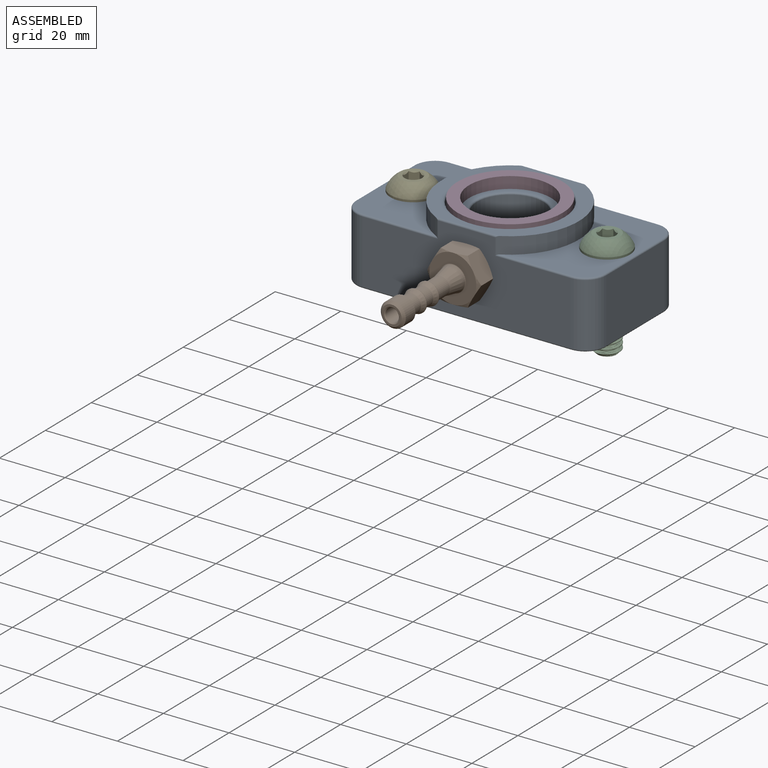
[diagram: assembled view]
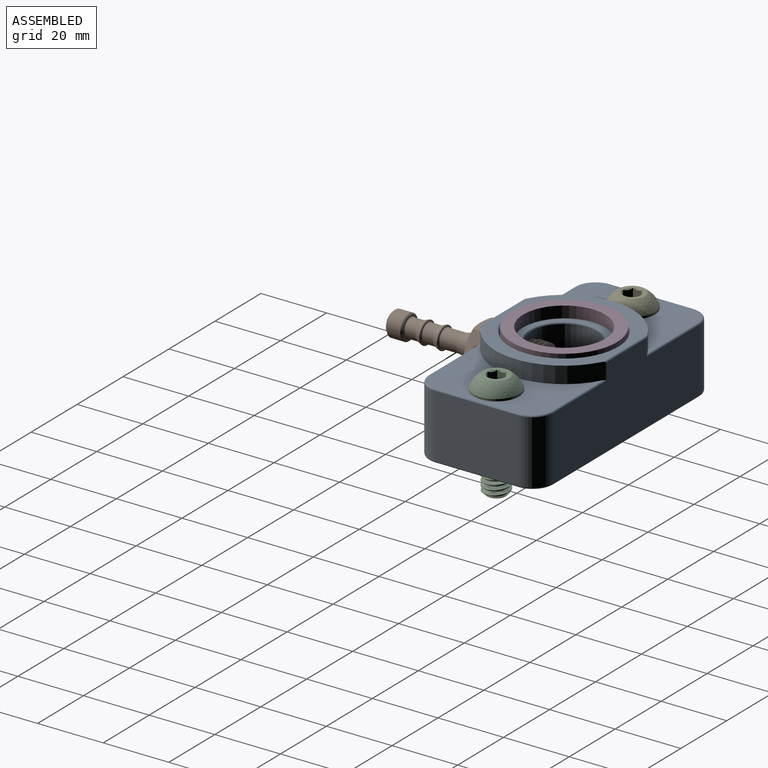
[diagram: assembled view, second angle]
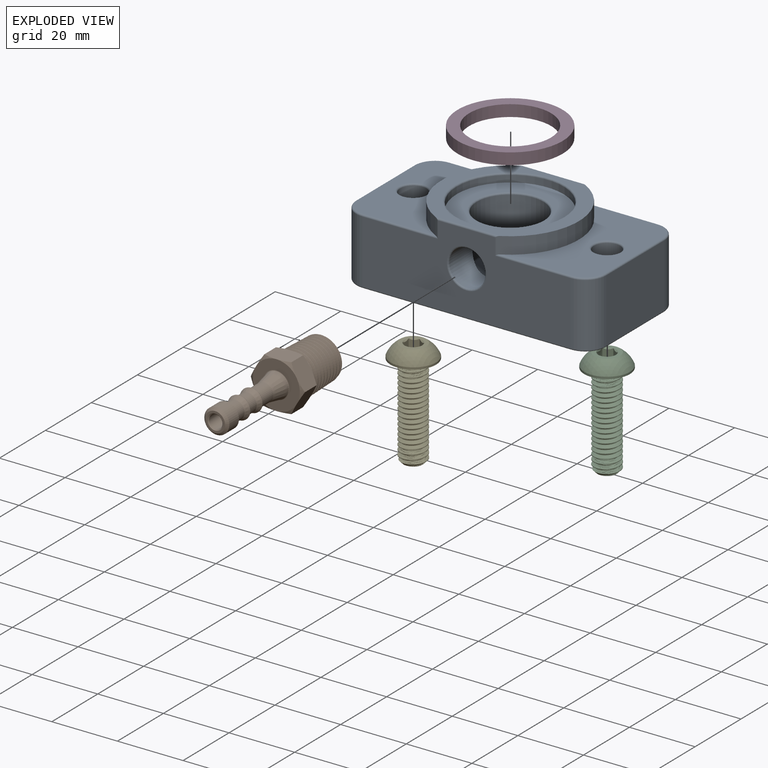
[diagram: exploded view]
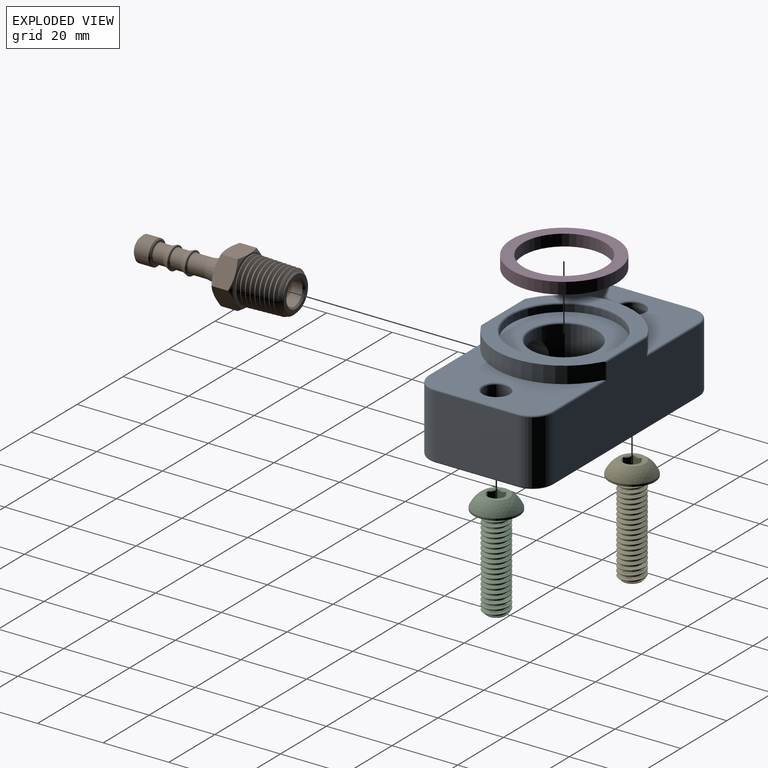
[diagram: exploded view, second angle]
ASSEMBLY  parts=5 mates=4
PART A: 53 faces, bbox 77.2x39x25.4 mm
  f0: plane 75.18x36.98mm, normal (0,0,-1), area 2623.6mm2, adj f21,f22,f23,f24,f25,f26,f27,f28
  f1: plane 63.5x24.38mm, normal (0,1,0), area 1314.5mm2, adj f2,f8,f28,f32,f34,f36,f38,f40
  f2: cylinder r=6.35mm len=19.3mm, axis (0,0,-1), area 192.5mm2, adj f1,f3,f27,f42
  f3: plane 25.3x19.3mm, normal (-1,0,0), area 488.4mm2, adj f2,f4,f25,f44
  f4: cylinder r=6.35mm len=19.3mm, axis (0,0,-1), area 192.5mm2, adj f3,f5,f23,f43
  f5: plane 63.5x24.38mm, normal (0,-1,0), area 1198.9mm2, adj f4,f6,f21,f33,f35,f37,f39,f41
  f6: cylinder r=6.35mm len=19.3mm, axis (0,0,-1), area 192.5mm2, adj f5,f7,f22,f31
  f7: plane 25.3x19.3mm, normal (1,0,0), area 488.4mm2, adj f6,f8,f24,f29
  f8: cylinder r=6.35mm len=19.3mm, axis (0,0,-1), area 192.5mm2, adj f1,f7,f26,f30
  f9: plane 41.91x36.98mm, normal (0,0,1), area 424.4mm2, adj f11,f13,f36,f37,f52
  f10: plane 36.98x27.74mm, normal (0,0,1), area 654.8mm2, adj f11,f29,f30,f31,f32,f33,f48
  f11: cylinder r=20.96mm len=37.9mm, axis (0,0,1), area 240.6mm2, adj f9,f10,f32,f33,f34,f35,f36,f37
  f12: plane 36.98x27.74mm, normal (0,0,1), area 654.8mm2, adj f13,f40,f41,f42,f43,f44,f47
  f13: cylinder r=20.96mm len=37.9mm, axis (0,0,1), area 240.6mm2, adj f9,f12,f36,f37,f38,f39,f40,f41
  f14: cylinder r=16.32mm len=32.64mm, axis (0,0,1), area 208.4mm2, adj f15,f52
  f15: plane 32.64x32.64mm, normal (0,0,1), area 479.2mm2, adj f14,f50
  f16: cylinder r=10.16mm len=20.32mm, axis (0,0,1), area 887.9mm2, adj f18,f50,f51
  f17: plane 19.3x19.3mm, normal (0,0,1), area 292.7mm2, adj f51
  f18: cylinder r=5.56mm len=11.11mm, axis (0,-1,0), area 319.1mm2, adj f16,f49
  f19: cylinder r=4mm len=19.3mm, axis (0,0,1), area 485.2mm2, adj f46,f47
  f20: cylinder r=4mm len=19.3mm, axis (0,0,1), area 485.2mm2, adj f45,f48
  f21: cylinder r=0.51mm len=63.5mm, axis (1,0,0), area 50.7mm2, adj f0,f5,f22,f23
  f22: torus R=5.84mm, axis (0,0,1), area 7.7mm2, adj f0,f6,f21,f24
  f23: torus R=5.84mm, axis (0,0,1), area 7.7mm2, adj f0,f4,f21,f25
  f24: cylinder r=0.51mm len=25.3mm, axis (0,1,0), area 20.2mm2, adj f0,f7,f22,f26
  f25: cylinder r=0.51mm len=25.3mm, axis (0,-1,0), area 20.2mm2, adj f0,f3,f23,f27
  f26: torus R=5.84mm, axis (0,0,1), area 7.7mm2, adj f0,f8,f24,f28
  f27: torus R=5.84mm, axis (0,0,1), area 7.7mm2, adj f0,f2,f25,f28
  f28: cylinder r=0.51mm len=63.5mm, axis (-1,0,0), area 50.7mm2, adj f0,f1,f26,f27
  f29: cylinder r=0.51mm len=25.3mm, axis (0,-1,0), area 20.2mm2, adj f7,f10,f30,f31
  f30: torus R=5.84mm, axis (0,0,1), area 7.7mm2, adj f8,f10,f29,f32
  f31: torus R=5.84mm, axis (0,0,1), area 7.7mm2, adj f6,f10,f29,f33
  f32: cylinder r=0.51mm len=23.03mm, axis (1,0,0), area 18mm2, adj f1,f10,f11,f30,f34
  f33: cylinder r=0.51mm len=23.03mm, axis (-1,0,0), area 18mm2, adj f5,f10,f11,f31,f35
  f34: cylinder r=0.51mm len=5.3mm, axis (0,0,1), area 1.1mm2, adj f1,f11,f32,f36
  f35: cylinder r=0.51mm len=5.3mm, axis (0,0,1), area 1.1mm2, adj f5,f11,f33,f37
  f36: cylinder r=0.51mm len=19.71mm, axis (1,0,0), area 14.7mm2, adj f1,f9,f11,f13,f34,f38
  f37: cylinder r=0.51mm len=19.71mm, axis (-1,0,0), area 14.7mm2, adj f5,f9,f11,f13,f35,f39
  f38: cylinder r=0.51mm len=5.3mm, axis (0,0,1), area 1.1mm2, adj f1,f13,f36,f40
  f39: cylinder r=0.51mm len=5.3mm, axis (0,0,1), area 1.1mm2, adj f5,f13,f37,f41
  f40: cylinder r=0.51mm len=23.03mm, axis (1,0,0), area 18mm2, adj f1,f12,f13,f38,f42
  f41: cylinder r=0.51mm len=23.03mm, axis (-1,0,0), area 18mm2, adj f5,f12,f13,f39,f43
  f42: torus R=5.84mm, axis (0,0,1), area 7.7mm2, adj f2,f12,f40,f44
  f43: torus R=5.84mm, axis (0,0,1), area 7.7mm2, adj f4,f12,f41,f44
  f44: cylinder r=0.51mm len=25.3mm, axis (0,1,0), area 20.2mm2, adj f3,f12,f42,f43
  f45: torus R=4.51mm, axis (0,0,1), area 21mm2, adj f0,f20
  f46: torus R=4.51mm, axis (0,0,1), area 21mm2, adj f0,f19
  f47: torus R=4.51mm, axis (0,0,1), area 21mm2, adj f12,f19
  f48: torus R=4.51mm, axis (0,0,1), area 21mm2, adj f10,f20
  f49: torus R=6.06mm, axis (0,-1,0), area 28.8mm2, adj f5,f18
  f50: torus R=10.67mm, axis (0,0,1), area 51.9mm2, adj f15,f16
  f51: torus R=9.65mm, axis (0,0,1), area 50mm2, adj f16,f17
  f52: torus R=16.83mm, axis (0,0,1), area 82.7mm2, adj f9,f14
PART B: 50 faces, bbox 17.2x17.2x48.3 mm
  f0: cone r=4.13mm half-angle=45deg, axis (0,0,-1), area 17.5mm2, adj f1,f22
  f1: cylinder r=3.62mm len=13.72mm, axis (0,0,1), area 311.9mm2, adj f0,f2
  f2: cone r=3.62mm half-angle=59deg, axis (0,0,-1), area 32.9mm2, adj f1,f21
  f3: cone r=2.35mm half-angle=45deg, axis (0,0,1), area 6.2mm2, adj f21,f33
  f4: cone r=6.39mm half-angle=1.8deg, axis (0,0,1), area 76.7mm2, adj f5,f47,f48,f49
  f5: cone r=5.32mm half-angle=45deg, axis (0,0,1), area 33mm2, adj f4,f22,f46,f47,f48
  f6: cone r=3.05mm half-angle=45deg, axis (0,0,-1), area 23.2mm2, adj f8,f33
  f7: cone r=3.81mm half-angle=45deg, axis (0,0,1), area 12.3mm2, adj f8,f32
  f8: cylinder r=3.81mm len=7.62mm, axis (0,0,1), area 100.3mm2, adj f6,f7
  f9: torus R=3.05mm, axis (0,0,1), area 7.2mm2, adj f10,f32
  f10: cylinder r=2.79mm len=5.59mm, axis (0,0,1), area 56.3mm2, adj f9,f11
  f11: cone r=3.41mm half-angle=22deg, axis (0,0,-1), area 32.1mm2, adj f10,f12
  f12: torus R=3.17mm, axis (0,0,1), area 10.5mm2, adj f11,f31
  f13: torus R=3.05mm, axis (0,0,1), area 7.2mm2, adj f14,f31
  f14: cylinder r=2.79mm len=5.59mm, axis (0,0,1), area 56.3mm2, adj f13,f15
  f15: cone r=3.41mm half-angle=22deg, axis (0,0,-1), area 32.1mm2, adj f14,f16
  f16: torus R=3.17mm, axis (0,0,1), area 10.5mm2, adj f15,f30
  f17: torus R=3.05mm, axis (0,0,1), area 7.2mm2, adj f18,f30
  f18: cylinder r=2.79mm len=5.59mm, axis (0,0,1), area 89.2mm2, adj f17,f19
  f19: cone r=3.79mm half-angle=11deg, axis (0,0,-1), area 108.1mm2, adj f18,f20
  f20: torus R=4.04mm, axis (0,0,1), area 8.6mm2, adj f19,f29
  f21: cylinder r=2.03mm len=31.75mm, axis (0,0,-1), area 405.3mm2, adj f2,f3
  f22: plane 10.64x10.64mm, normal (0,0,-1), area 35.3mm2, adj f0,f5
  f23: plane 8.93x7.03mm, normal (-1,0,0), area 48.8mm2, adj f24,f28,f34,f35,f41,f45
  f24: plane 7.82x7.03mm, normal (-0.5,-0.87,0), area 48.8mm2, adj f23,f25,f34,f36,f44,f45
  f25: plane 7.82x7.03mm, normal (0.5,-0.87,0), area 48.8mm2, adj f24,f26,f36,f37,f43,f44
  f26: plane 8.93x7.03mm, normal (1,0,0), area 48.8mm2, adj f25,f27,f37,f38,f42,f43
  f27: plane 7.82x7.03mm, normal (0.5,0.87,0), area 48.8mm2, adj f26,f28,f38,f39,f40,f42
  f28: plane 7.82x7.03mm, normal (-0.5,0.87,0), area 48.8mm2, adj f23,f27,f35,f39,f40,f41
  f29: plane 14.29x14.29mm, normal (0,0,1), area 109mm2, adj f20,f34,f35,f36,f37,f38,f39
  f30: plane 6.35x6.35mm, normal (0,0,-1), area 2.5mm2, adj f16,f17
  f31: plane 6.35x6.35mm, normal (0,0,-1), area 2.5mm2, adj f12,f13
  f32: plane 6.86x6.86mm, normal (0,0,-1), area 7.8mm2, adj f7,f9
  f33: plane 6.1x6.1mm, normal (0,0,1), area 11.8mm2, adj f3,f6
  f34: cone r=7.14mm half-angle=60deg, axis (0,0,-1), area 5mm2, adj f23,f24,f29
  f35: cone r=7.14mm half-angle=60deg, axis (0,0,-1), area 5mm2, adj f23,f28,f29
  f36: cone r=7.14mm half-angle=60deg, axis (0,0,-1), area 5mm2, adj f24,f25,f29
  f37: cone r=7.14mm half-angle=60deg, axis (0,0,-1), area 5mm2, adj f25,f26,f29
  f38: cone r=7.14mm half-angle=60deg, axis (0,0,-1), area 5mm2, adj f26,f27,f29
  f39: cone r=7.14mm half-angle=60deg, axis (0,0,-1), area 5mm2, adj f27,f28,f29
  f40: cone r=7.14mm half-angle=60deg, axis (0,0,1), area 5mm2, adj f27,f28,f49
  f41: cone r=7.14mm half-angle=60deg, axis (0,0,1), area 5mm2, adj f23,f28,f49
  f42: cone r=7.14mm half-angle=60deg, axis (0,0,1), area 5mm2, adj f26,f27,f49
  f43: cone r=7.14mm half-angle=60deg, axis (0,0,1), area 5mm2, adj f25,f26,f49
  f44: cone r=7.14mm half-angle=60deg, axis (0,0,1), area 5mm2, adj f24,f25,f49
  f45: cone r=7.14mm half-angle=60deg, axis (0,0,1), area 5mm2, adj f23,f24,f49
  f46: bspline ~14.56x11.9mm, area 63mm2, adj f5,f47,f48,f49
  f47: bspline ~14.75x13.94mm, area 394.8mm2, adj f4,f5,f46,f49
  f48: bspline ~15.23x13.9mm, area 378.7mm2, adj f4,f5,f46,f49
  f49: plane 14.82x14.82mm, normal (0,0,-1), area 31.8mm2, adj f4,f40,f41,f42,f43,f44,f45,f46
PART C: 23 faces, bbox 15x14.9x35.5 mm
  f0: cone r=2.75mm half-angle=45deg, axis (0,0,1), area 0.7mm2, adj f9,f17
  f1: cylinder r=6.95mm len=13.89mm, axis (0,0,1), area 27.6mm2, adj f2,f10
  f2: sphere r=7.47mm, area 168.2mm2, adj f1,f9
  f3: cone r=2.91mm half-angle=45deg, axis (0,0,1), area 17.6mm2, adj f4,f5,f6,f7,f8
  f4: cylinder r=3.97mm len=27.52mm, axis (0,0,-1), area 85.8mm2, adj f3,f6,f8,f10
  f5: plane 5.82x5.82mm, normal (0,0,-1), area 26.6mm2, adj f3
  f6: bspline ~29.1x7.94mm, area 463.4mm2, adj f3,f4,f7,f10
  f7: cylinder r=3.05mm len=28.43mm, axis (0,0,-1), area 68.3mm2, adj f3,f6,f8,f10
  f8: bspline ~29.63x7.94mm, area 463.1mm2, adj f3,f4,f7,f10
  f9: plane 7.94x7.94mm, normal (0,0,1), area 25.7mm2, adj f0,f2,f11,f12,f13,f14,f15
  f10: plane 14.43x14.43mm, normal (0,0,-1), area 112.6mm2, adj f1,f4,f6,f7,f8
  f11: cone r=2.75mm half-angle=45deg, axis (0,0,1), area 0mm2, adj f9,f18
  f12: cone r=2.75mm half-angle=45deg, axis (0,0,1), area 0mm2, adj f9,f19
  f13: cone r=2.75mm half-angle=45deg, axis (0,0,1), area 0mm2, adj f9,f20
  f14: cone r=2.75mm half-angle=45deg, axis (0,0,1), area 0mm2, adj f9,f21
  f15: cone r=2.75mm half-angle=45deg, axis (0,0,1), area 0mm2, adj f9,f22
  f16: plane 5.5x4.76mm, normal (0,0,1), area 19.6mm2, adj f17,f18,f19,f20,f21,f22
  f17: plane 3.22x3.02mm, normal (-1,0,0), area 7.5mm2, adj f0,f16,f18,f22
  f18: plane 3.99x3.42mm, normal (-0.5,-0.87,0), area 7.5mm2, adj f11,f16,f17,f19
  f19: plane 3.99x3.42mm, normal (0.5,-0.87,0), area 7.4mm2, adj f12,f16,f18,f20
  f20: plane 3.99x3.79mm, normal (1,0,0), area 7.4mm2, adj f13,f16,f19,f21
  f21: plane 3.99x3.42mm, normal (0.5,0.87,0), area 7.5mm2, adj f14,f16,f20,f22
  f22: plane 3.99x3.42mm, normal (-0.5,0.87,0), area 7.5mm2, adj f15,f16,f17,f21
PART D: 4 faces, bbox 32.1x32.1x3.5 mm
  f0: cylinder r=12.5mm len=24.99mm, axis (0,0,-1), area 277.2mm2, adj f2,f3
  f1: cylinder r=16.03mm len=32.05mm, axis (0,0,-1), area 355.5mm2, adj f2,f3
  f2: plane 32.05x32.05mm, normal (0,0,1), area 316.4mm2, adj f0,f1
  f3: plane 32.05x32.05mm, normal (0,0,-1), area 316.4mm2, adj f0,f1
PART E: same geometry as C
PLACE A t=(-42.6,-5.36,-20.19)mm fixed
PLACE B rot(axis=(0.58,-0.58,0.58),120deg) t=(-42.32,-30.71,-6.46)mm
PLACE C t=(-13.08,-5.36,4.34)mm
PLACE D t=(-42.6,-5.36,-20.19)mm
PLACE E t=(-72.13,-5.36,4.34)mm
MATE cylindrical E.f0 <-> A.f19  axis (0,0,-1) through (-72.13,-5.36,0.13)mm
MATE cylindrical C.f0 <-> A.f20  axis (0,0,-1) through (-13.08,-5.36,0.13)mm
MATE planar B.f0 <-> A.f5  axis (0,1,0) through (-42.32,-24.36,-6.46)mm
MATE cylindrical A.f16 <-> D.f0  axis (0,0,1) through (-42.6,-5.36,2.67)mm
